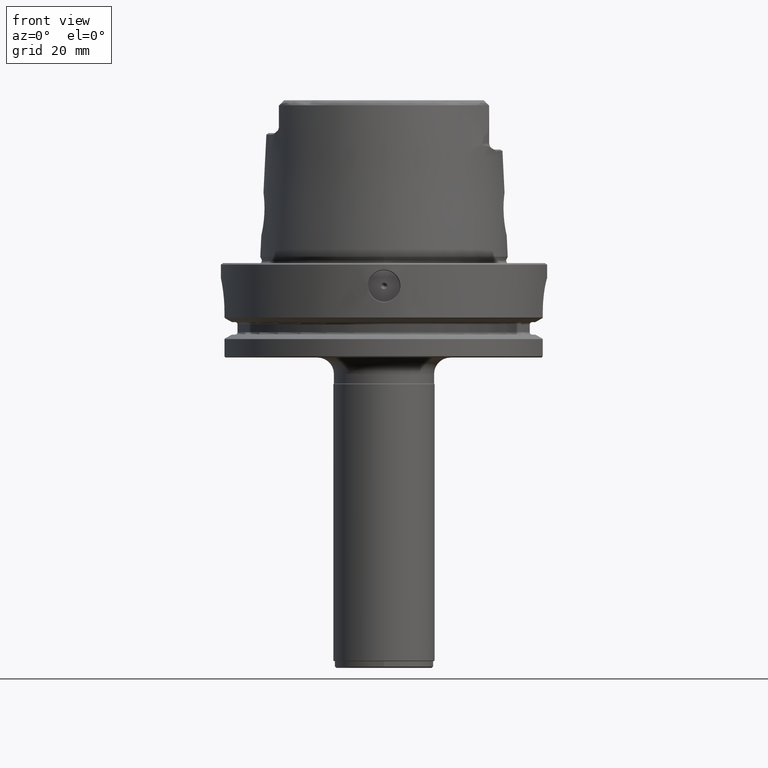
[diagram: clean part render]
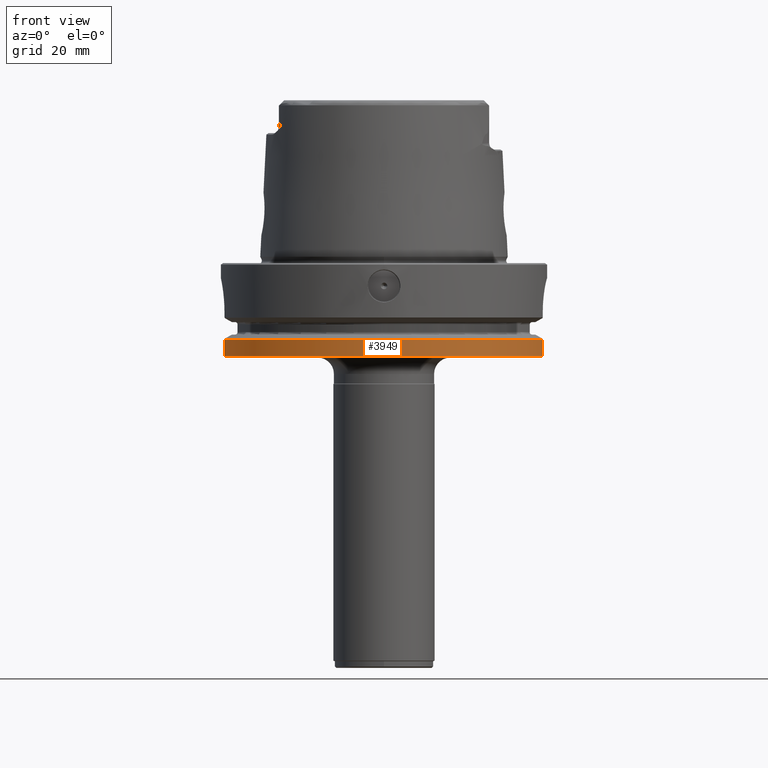
[diagram: same view with one face highlighted and labeled with its STEP entity id]
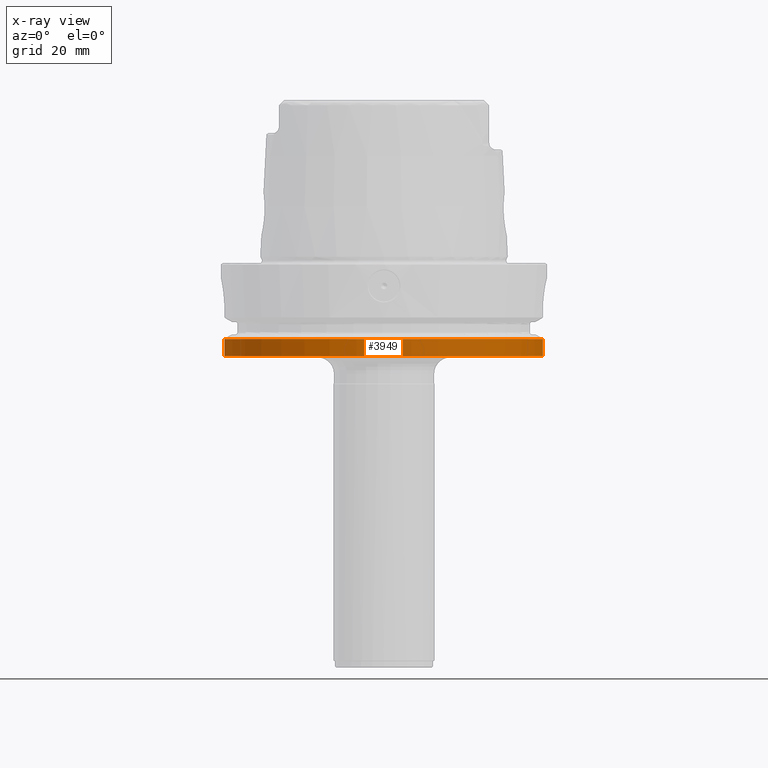
[diagram: x-ray of the same camera — body ghosted, the highlighted face saturated]
A machine part, front view. The second image highlights one B-rep face of the part: STEP entity #3949.
The next image is the same camera in x-ray: the body ghosted, the highlighted face saturated — about 0% of this face is hidden behind the body in this view.
In plain terms, the highlighted cylindrical surface (partial cylindrical patch) has radius 49.965 mm, axis along (-0, -0, 1).
Its self-contained STEP definition (entity closure, byte-faithful):
#1607=EDGE_CURVE('NONE',#3513,#3247,#4478,.T.);
#1969=EDGE_CURVE('NONE',#2955,#2059,#4879,.F.);
#2059=VERTEX_POINT('',#4977);
#2133=EDGE_CURVE('NONE',#2059,#3187,#5057,.F.);
#2417=EDGE_CURVE('NONE',#2441,#3513,#5371,.F.);
#2441=VERTEX_POINT('NONE',#5398);
#2955=VERTEX_POINT('NONE',#5963);
#3187=VERTEX_POINT('NONE',#6216);
#3247=VERTEX_POINT('NONE',#6284);
#3513=VERTEX_POINT('NONE',#6581);
#3797=EDGE_CURVE('NONE',#3187,#3247,#6891,.F.);
#3949=ADVANCED_FACE('NONE',(#7058),#7059,.T.);
#4175=EDGE_CURVE('NONE',#2441,#2955,#7301,.F.);
#4478=CIRCLE('',#7887,49.965);
#4879=CIRCLE('',#8797,49.965);
#4977=CARTESIAN_POINT('',(6.10951979111707E-015,-49.965,-28.56));
#5057=CIRCLE('',#9154,49.965);
#5371=CIRCLE('',#9881,49.965);
#5398=CARTESIAN_POINT('',(48.6382090731312,-11.4379125350032,-23.3052192211222));
#5963=CARTESIAN_POINT('',(48.6382090731312,-11.4379125350032,-28.56));
#6216=CARTESIAN_POINT('',(-48.874036943913,-10.3841098706163,-28.56));
#6284=CARTESIAN_POINT('',(-48.874036943913,-10.3841098706163,-23.3052192211222));
#6581=CARTESIAN_POINT('',(0.0,-49.965,-23.3052192211221));
#6891=LINE('',#13851,#13852);
#7058=FACE_OUTER_BOUND('',#14266,.T.);
#7059=CYLINDRICAL_SURFACE('',#14267,49.965);
#7301=LINE('',#15035,#15036);
#7887=AXIS2_PLACEMENT_3D('',#15562,#15563,#15564);
#8797=AXIS2_PLACEMENT_3D('',#16015,#16016,#16017);
#9154=AXIS2_PLACEMENT_3D('',#16190,#16191,#16192);
#9881=AXIS2_PLACEMENT_3D('',#16598,#16599,#16600);
#13851=CARTESIAN_POINT('',(-48.874036943913,-10.3841098706163,0.0));
#13852=VECTOR('',#18260,1.0);
#14266=EDGE_LOOP('',(#18461,#18462,#18463,#18464,#18465,#18466));
#14267=AXIS2_PLACEMENT_3D('',#18467,#18468,#18469);
#15035=CARTESIAN_POINT('',(48.6382090731312,-11.4379125350032,0.0));
#15036=VECTOR('',#18670,1.0);
#15562=CARTESIAN_POINT('',(0.0,0.0,-23.3052192211222));
#15563=DIRECTION('',(0.0,0.0,-1.0));
#15564=DIRECTION('',(-1.0,0.0,0.0));
#16015=CARTESIAN_POINT('',(0.0,0.0,-28.56));
#16016=DIRECTION('',(0.0,0.0,1.0));
#16017=DIRECTION('',(-1.0,0.0,0.0));
#16190=CARTESIAN_POINT('',(0.0,0.0,-28.56));
#16191=DIRECTION('',(0.0,0.0,1.0));
#16192=DIRECTION('',(-1.0,0.0,0.0));
#16598=CARTESIAN_POINT('',(0.0,0.0,-23.3052192211222));
#16599=DIRECTION('',(0.0,0.0,1.0));
#16600=DIRECTION('',(-1.0,0.0,0.0));
#18260=DIRECTION('',(0.0,0.0,-1.0));
#18461=ORIENTED_EDGE('',*,*,#4175,.F.);
#18462=ORIENTED_EDGE('',*,*,#2417,.T.);
#18463=ORIENTED_EDGE('',*,*,#1607,.T.);
#18464=ORIENTED_EDGE('',*,*,#3797,.F.);
#18465=ORIENTED_EDGE('',*,*,#2133,.F.);
#18466=ORIENTED_EDGE('',*,*,#1969,.F.);
#18467=CARTESIAN_POINT('',(0.0,0.0,0.0));
#18468=DIRECTION('',(-0.0,-0.0,1.0));
#18469=DIRECTION('',(-1.0,0.0,0.0));
#18670=DIRECTION('',(0.0,0.0,1.0));